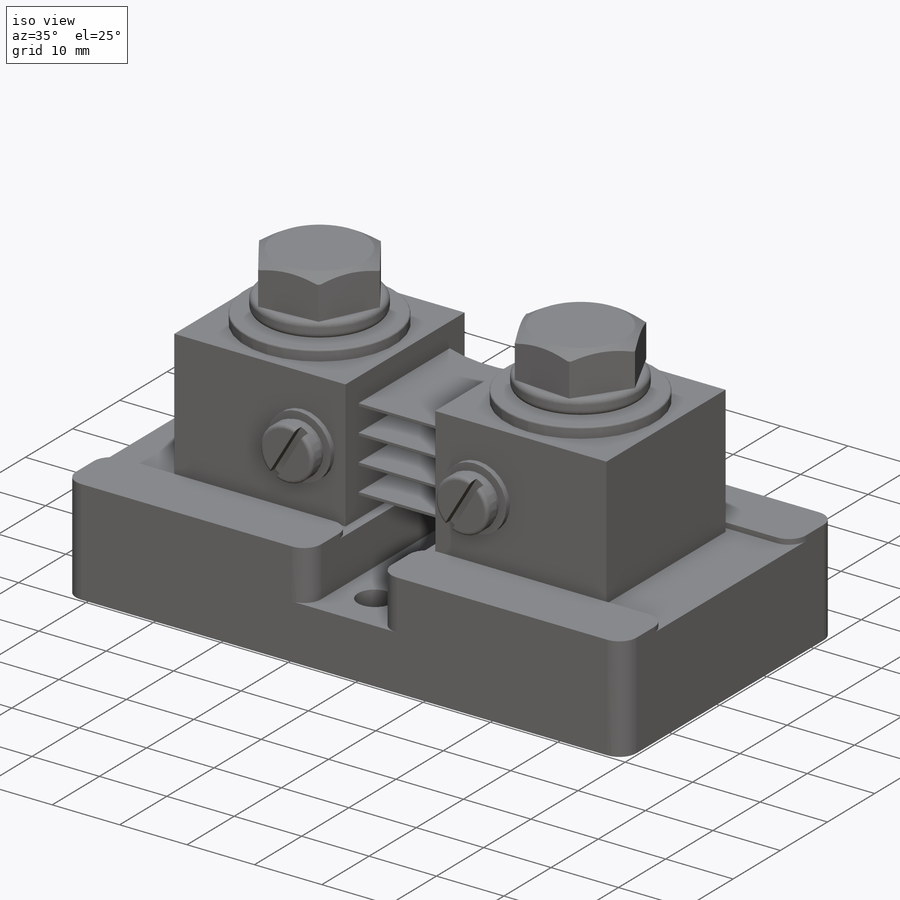
[diagram: iso view]
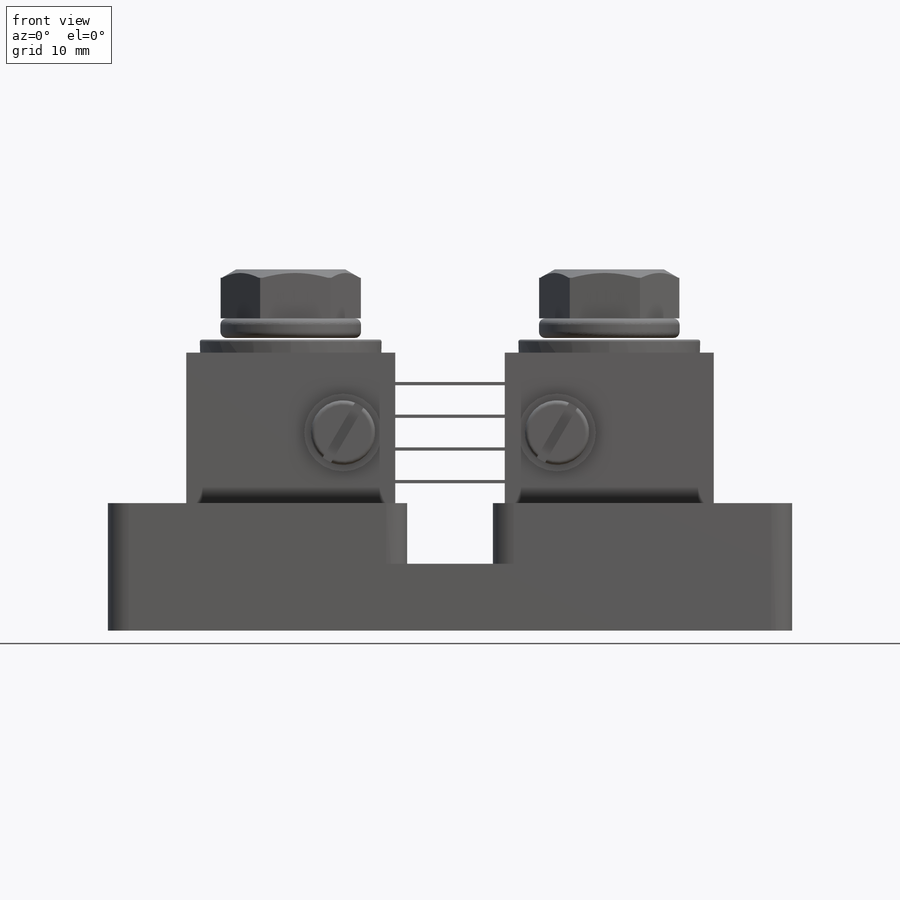
[diagram: front view]
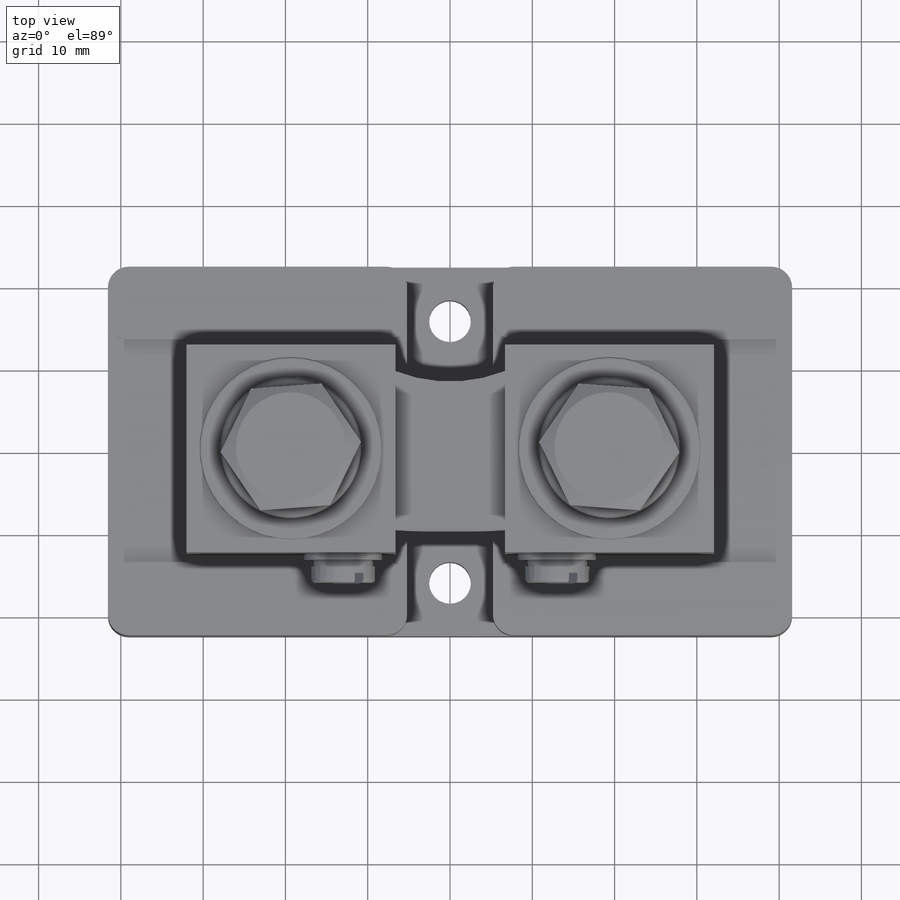
[diagram: top view]
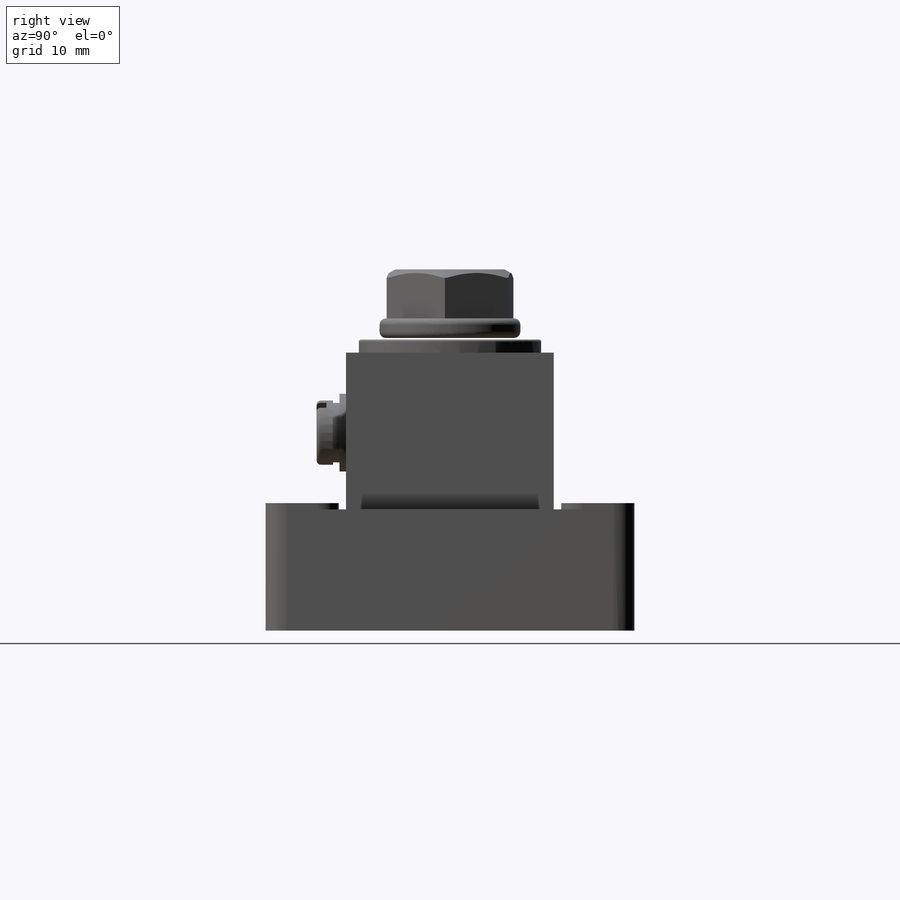
[diagram: right view]
SOLIDWORKS PART (.sldprt)
format: sldprt  version: not decoded by parser v0  size: 718,336 bytes
history: native  units: mm
features: sketch x16, extrude x10, cut_extrude x6, fillet x5, plane x4, material x1 (+16 scaffold rows collapsed)
feature tree (58):
  scaffold x16  (default folders/planes/origin — collapsed)
  material  "Material <not specified>"
  sketch  "Sketch1"  dims[D3=2.54mm D1=83.1596mm D2=44.8056mm]
  extrude  "Boss-Extrude1"  Depth=8.128mm
  sketch  "Sketch3"  dims[D2=2.54mm D1=36.3728mm]
  extrude  "Boss-Extrude2"  Depth=6.604mm
  sketch  "Sketch4"  dims[D2=2.54mm D1=8.89mm]
  extrude  "Boss-Extrude3"  Depth=0.762mm
  sketch  "Sketch5"  dims[D1=5.08mm D2=6.5024mm]
  cut_extrude  "Cut-Extrude2"  [1 undecoded]
  plane  "Plane1"  Offset=12.6365mm
  sketch  "Sketch7"  dims[D1=0.762mm D2=9.525mm D3=25.4mm D4=19.05mm D5=~0.396875mm D6=3.175mm D7=~7.14375mm D8=11.1125mm D9=~15.08125mm]
  extrude  "Boss-Extrude5"  Depth=25.2476mm
  sketch  "Sketch8"  dims[D1=~1.698657mm D2=6.35mm]
  extrude  "Boss-Extrude6"  Depth=0.79375mm
  plane  "Plane2"  Offset=0.79375mm
  sketch  "Sketch9"  dims[D1=7.239mm]
  extrude  "Boss-Extrude7"  Depth=0.79375mm
  plane  "Plane3"  Offset=0.79375mm
  plane  "Plane4"  Offset=1.778mm
  sketch  "Sketch10"  dims[D1=7.8232mm]
  extrude  "Boss-Extrude8"  Depth=1.984375mm
  fillet  "Fillet2"  Radius=0.508mm
  sketch  "Sketch11"  dims[D1=~1.190625mm D2=~1.190625mm]
  cut_extrude  "Cut-Extrude3"  Depth=1.190625mm
  sketch  "Sketch12"  dims[D1=~2.778125mm D2=3.175mm D3=13.3096mm]
  cut_extrude  "Cut-Extrude4"  [1 undecoded]
  sketch  "Sketch13"  dims[D1=22.1488mm]
  extrude  "Boss-Extrude9"  Depth=1.5875mm
  fillet  "Fillet3"  Radius=0.254mm
  sketch  "Sketch14"  dims[D1=17.0942mm]
  extrude  "Boss-Extrude10"  Depth=2.38125mm
  fillet  "Fillet4"  Radius=0.762mm
  fillet  "Fillet5"  Radius=0.762mm
  sketch  "Sketch15"
  extrude  "Boss-Extrude11"  Depth=5.953125mm
  sketch  "Sketch18"  dims[D1=~13.280011mm]
  cut_extrude  "Cut-Extrude6"  Depth=1.016mm
  sketch  "Sketch19"  dims[D1=13.2842mm]
  cut_extrude  "Cut-Extrude7"  Depth=1.016mm
  sketch  "Sketch17"  dims[D1=15.24mm D2=22.4536mm]
  cut_extrude  "Cut-Extrude5"  Depth=1.984375mm
  fillet  "Fillet8"  Radius=0.762mm
decode coverage: 34 of 37 modeling features carry decoded parameters
note: ~ marks probable driven/reference dimensions
note: 2 parameter values undecoded
note: suppression state not decoded; provenance and decode notes live in map.json
